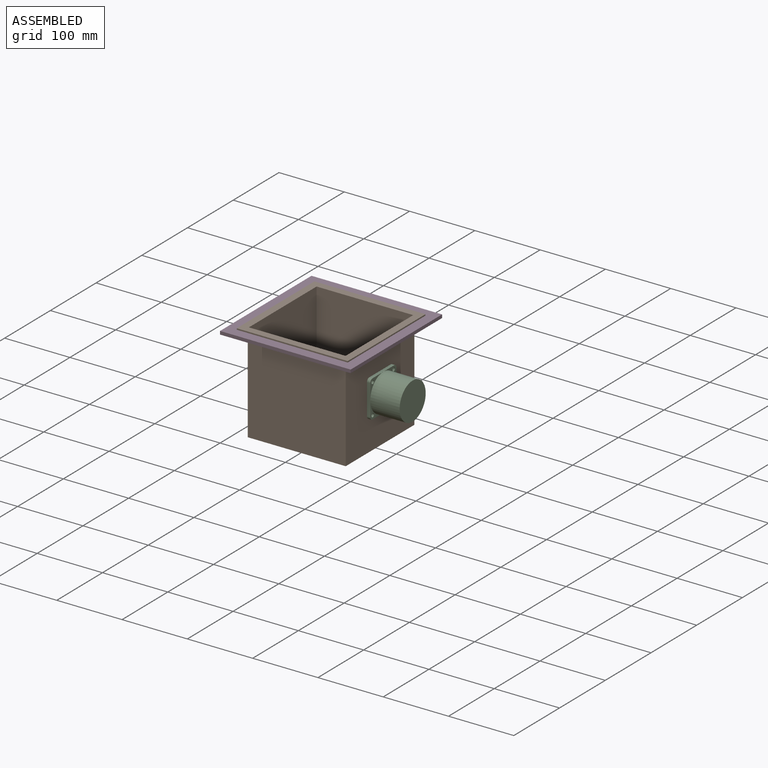
[diagram: assembled view]
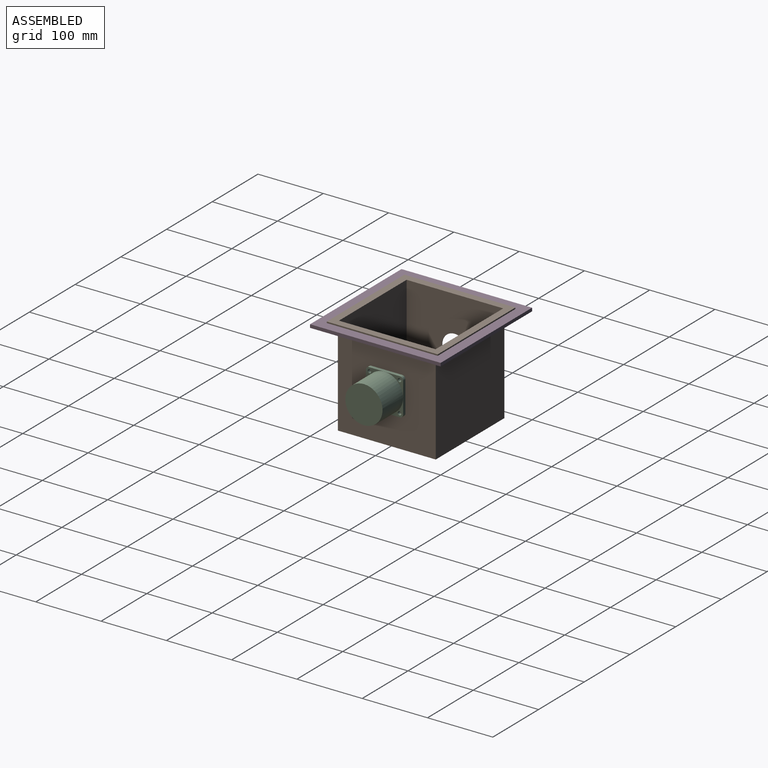
[diagram: assembled view, second angle]
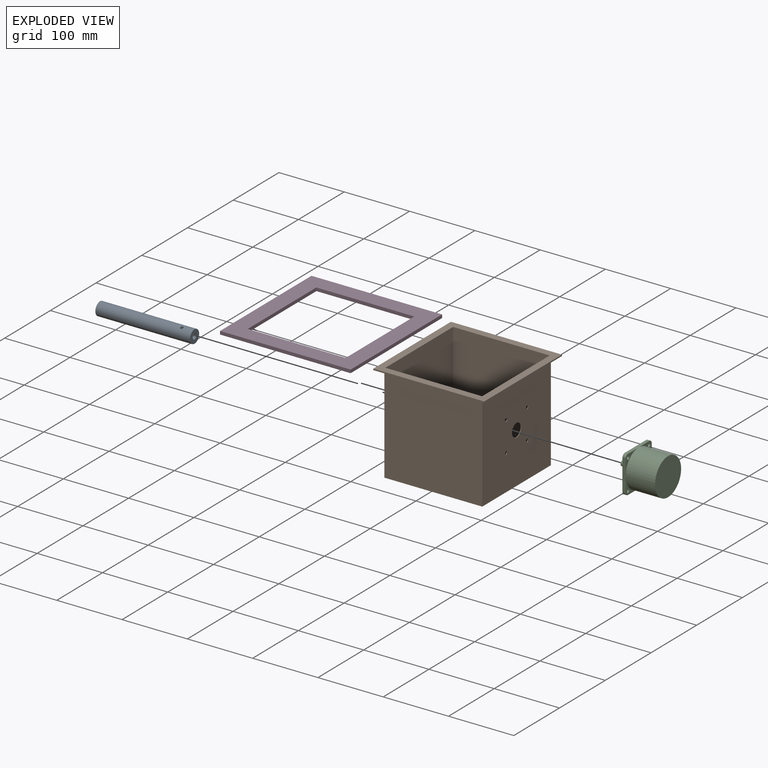
[diagram: exploded view]
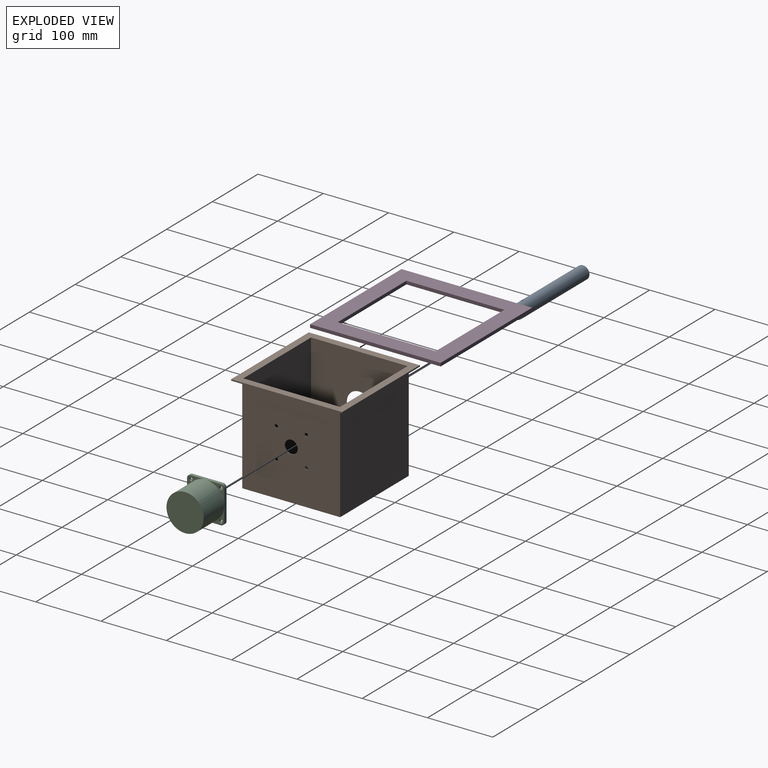
[diagram: exploded view, second angle]
ASSEMBLY  parts=4 mates=3
PART A: 6 faces, bbox 20x145x20 mm
  f0: cylinder r=10mm len=145mm, axis (0,1,0), area 9094.6mm2, adj f2,f3,f5
  f1: cylinder r=4.05mm len=25mm, axis (0,1,0), area 619.6mm2, adj f3,f4,f5
  f2: plane 20x20mm, normal (0,-1,0), area 314.2mm2, adj f0
  f3: plane 20x20mm, normal (0,1,0), area 262.6mm2, adj f0,f1
  f4: plane 8.1x8.1mm, normal (0,1,0), area 51.5mm2, adj f1
  f5: cylinder r=2.25mm len=6.63mm, axis (0,0,-1), area 87mm2, adj f0,f1
PART B: 22 faces, bbox 170x170x152 mm
  f0: cylinder r=2.5mm len=5mm, axis (1,0,0), area 15.7mm2, adj f10,f15
  f1: cylinder r=2.5mm len=5mm, axis (1,0,0), area 15.7mm2, adj f10,f15
  f2: cylinder r=2.5mm len=5mm, axis (1,0,0), area 15.7mm2, adj f10,f15
  f3: plane 170x170mm, normal (0,0,1), area 6996mm2, adj f4,f5,f6,f7,f14,f15,f16,f17
  f4: plane 170x2mm, normal (0,-1,0), area 340mm2, adj f3,f5,f7,f8
  f5: plane 170x2mm, normal (1,0,0), area 340mm2, adj f3,f4,f6,f8
  f6: plane 170x2mm, normal (0,1,0), area 340mm2, adj f3,f5,f7,f8
  f7: plane 170x2mm, normal (-1,0,0), area 340mm2, adj f3,f4,f6,f8
  f8: plane 170x170mm, normal (0,0,-1), area 6400mm2, adj f4,f5,f6,f7,f9,f10,f11,f12
  f9: plane 150x150mm, normal (0,1,0), area 22500mm2, adj f8,f10,f12,f13
  f10: plane 150x150mm, normal (1,0,0), area 22107.3mm2, adj f0,f1,f2,f8,f9,f11,f13,f19
  f11: plane 150x150mm, normal (0,-1,0), area 22500mm2, adj f8,f10,f12,f13
  f12: plane 150x150mm, normal (-1,0,0), area 21243.4mm2, adj f8,f9,f11,f13,f21
  f13: plane 150x150mm, normal (0,0,-1), area 22500mm2, adj f9,f10,f11,f12
  f14: plane 149x148mm, normal (0,1,0), area 22052mm2, adj f3,f15,f17,f18
  f15: plane 149x148mm, normal (-1,0,0), area 21659.3mm2, adj f0,f1,f2,f3,f14,f16,f18,f19
  f16: plane 149x148mm, normal (0,-1,0), area 22052mm2, adj f3,f15,f17,f18
  f17: plane 149x148mm, normal (1,0,0), area 20795.4mm2, adj f3,f14,f16,f18,f21
  f18: plane 148x148mm, normal (0,0,1), area 21904mm2, adj f14,f15,f16,f17
  f19: cylinder r=10mm len=20mm, axis (1,0,0), area 62.8mm2, adj f10,f15
  f20: cylinder r=2.5mm len=5mm, axis (1,0,0), area 15.7mm2, adj f10,f15
  f21: cylinder r=20mm len=40mm, axis (-1,0,0), area 125.7mm2, adj f12,f17
PART C: 23 faces, bbox 57x70x57 mm
  f0: cylinder r=2.75mm len=5.5mm, axis (0,-1,0), area 86.4mm2, adj f4,f11
  f1: cylinder r=2.75mm len=5.5mm, axis (0,-1,0), area 86.4mm2, adj f5,f11
  f2: cylinder r=2.75mm len=5.5mm, axis (0,-1,0), area 86.4mm2, adj f10,f11
  f3: plane 28.5x28.5mm, normal (0,1,0), area 145.2mm2, adj f7,f8,f12,f17,f20
  f4: plane 28.5x28.5mm, normal (0,1,0), area 145.2mm2, adj f0,f6,f7,f12,f16
  f5: plane 28.5x28.5mm, normal (0,1,0), area 145.2mm2, adj f1,f6,f9,f12,f19
  f6: plane 47x5mm, normal (0,0,-1), area 235mm2, adj f4,f5,f11,f16,f19
  f7: plane 47x5mm, normal (1,0,0), area 235mm2, adj f3,f4,f11,f16,f17
  f8: plane 47x5mm, normal (0,0,1), area 235mm2, adj f3,f10,f11,f17,f18
  f9: plane 47x5mm, normal (-1,0,0), area 235mm2, adj f5,f10,f11,f18,f19
  f10: plane 28.5x28.5mm, normal (0,1,0), area 145.2mm2, adj f2,f8,f9,f12,f18
  f11: plane 57x57mm, normal (0,-1,0), area 3082.2mm2, adj f0,f1,f2,f6,f7,f8,f9,f14
  f12: cylinder r=28.5mm len=57mm, axis (0,-1,0), area 8058.2mm2, adj f3,f4,f5,f10,f13
  f13: plane 57x57mm, normal (0,1,0), area 2551.8mm2, adj f12
  f14: cylinder r=4mm len=20mm, axis (0,1,0), area 415.9mm2, adj f11,f15,f21,f22
  f15: plane 8x7mm, normal (0,-1,0), area 46.6mm2, adj f14,f21
  f16: cylinder r=5mm len=5mm, axis (0,1,0), area 39.3mm2, adj f4,f6,f7,f11
  f17: cylinder r=5mm len=5mm, axis (0,-1,0), area 39.3mm2, adj f3,f7,f8,f11
  f18: cylinder r=5mm len=5mm, axis (0,1,0), area 39.3mm2, adj f8,f9,f10,f11
  f19: cylinder r=5mm len=5mm, axis (0,-1,0), area 39.3mm2, adj f5,f6,f9,f11
  f20: cylinder r=2.75mm len=5.5mm, axis (0,-1,0), area 86.4mm2, adj f3,f11
  f21: plane 15x5.29mm, normal (0,0,1), area 79.4mm2, adj f14,f15,f22
  f22: plane 5.29x1mm, normal (0,-1,0), area 3.6mm2, adj f14,f21
PART D: 10 faces, bbox 200x200x5 mm
  f0: plane 200x5mm, normal (0,-1,0), area 1000mm2, adj f1,f7,f8,f9
  f1: plane 200x5mm, normal (1,0,0), area 1000mm2, adj f0,f2,f8,f9
  f2: plane 200x5mm, normal (0,1,0), area 1000mm2, adj f1,f7,f8,f9
  f3: plane 150x5mm, normal (-1,0,0), area 750mm2, adj f4,f6,f8,f9
  f4: plane 150x5mm, normal (0,1,0), area 750mm2, adj f3,f5,f8,f9
  f5: plane 150x5mm, normal (1,0,0), area 750mm2, adj f4,f6,f8,f9
  f6: plane 150x5mm, normal (0,-1,0), area 750mm2, adj f3,f5,f8,f9
  f7: plane 200x5mm, normal (-1,0,0), area 1000mm2, adj f0,f2,f8,f9
  f8: plane 200x200mm, normal (0,0,1), area 17500mm2, adj f0,f1,f2,f3,f4,f5,f6,f7
  f9: plane 200x200mm, normal (0,0,-1), area 17500mm2, adj f0,f1,f2,f3,f4,f5,f6,f7
PLACE A rot(axis=(0.19,0.19,-0.96),92.1deg) t=(1.78,0,74.96)mm
PLACE B t=(0,0,152)mm
PLACE C rot(axis=(-0.71,-0.71,0),180deg) t=(75,0,74.96)mm
PLACE D t=(0,0,145)mm
MATE cylindrical A.f1 <-> C.f14  axis (1,0,0) through (74.28,0,74.96)mm
MATE fastened B.f8 <-> D.f8  axis (0,0,-1) through (0,0,150)mm
MATE fastened C.f14 <-> B.f10  axis (-1,0,0) through (75,0,74.96)mm
